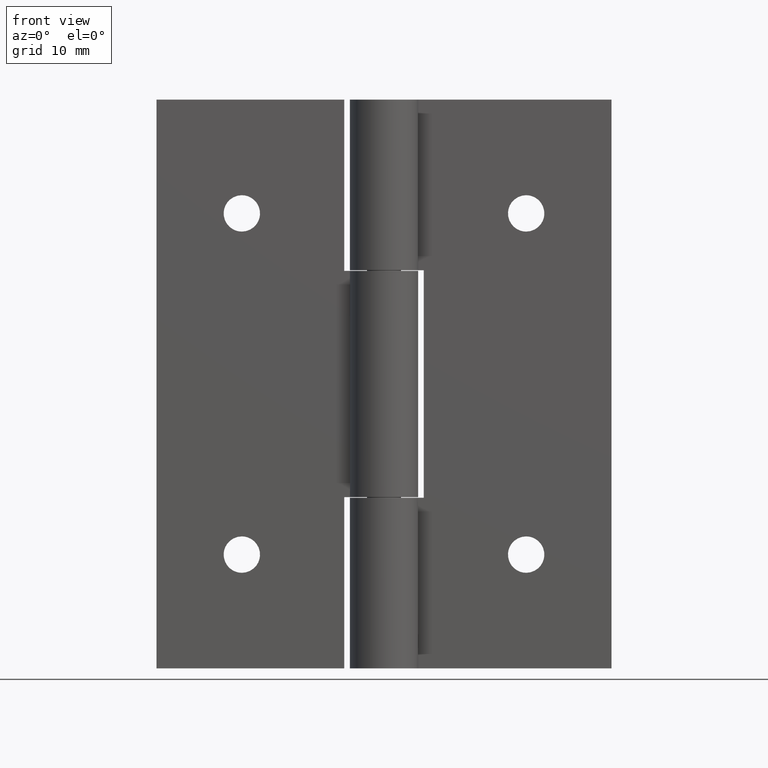
[diagram: clean part render]
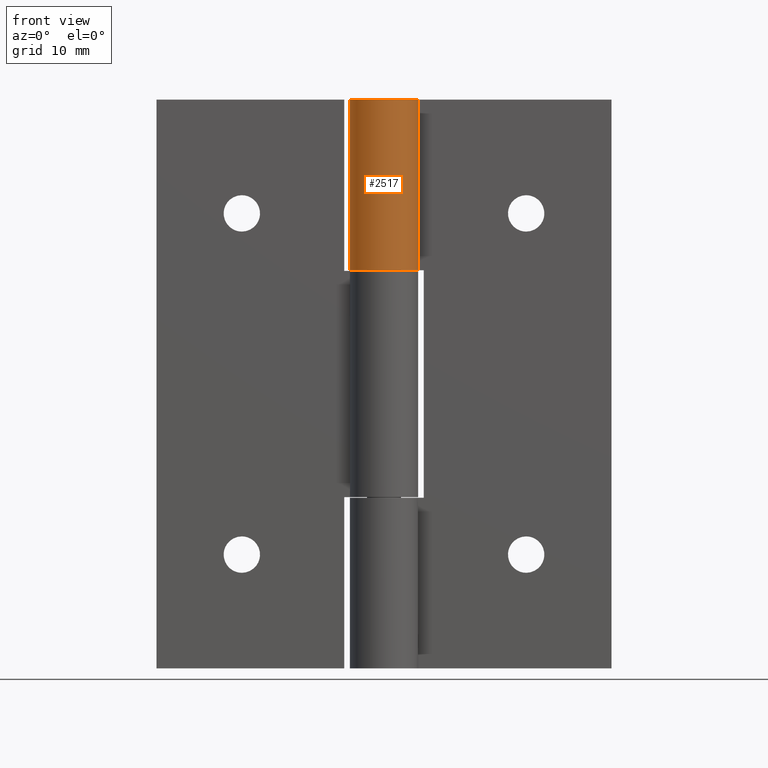
[diagram: same view with one face highlighted and labeled with its STEP entity id]
A machine part, front view. The second image highlights one B-rep face of the part: STEP entity #2517.
In plain terms, the highlighted face is a freeform B-spline surface patch.
Its self-contained STEP definition (entity closure, byte-faithful):
#2437=CARTESIAN_POINT('',(0.106477102102893,2.998109842338630,50.375000000000007));
#2438=CARTESIAN_POINT('',(0.106477102102893,2.998109842338630,34.615624999999987));
#2439=CARTESIAN_POINT('',(-3.302198186550077,3.119168070966572,50.375000000000021));
#2440=CARTESIAN_POINT('',(-3.302198186550077,3.119168070966572,34.615625000000001));
#2441=CARTESIAN_POINT('',(-2.987177270559451,-0.277077523904384,50.375000000000007));
#2442=CARTESIAN_POINT('',(-2.987177270559451,-0.277077523904384,34.615624999999987));
#2443=CARTESIAN_POINT('',(-2.672156354568825,-3.673323118775340,50.375000000000021));
#2444=CARTESIAN_POINT('',(-2.672156354568825,-3.673323118775340,34.615625000000001));
#2445=CARTESIAN_POINT('',(0.656099356428951,-2.927376578866052,50.375000000000007));
#2446=CARTESIAN_POINT('',(0.656099356428951,-2.927376578866052,34.615624999999987));
#2447=CARTESIAN_POINT('',(3.984355067426725,-2.181430038956764,50.375000000000021));
#2448=CARTESIAN_POINT('',(3.984355067426725,-2.181430038956764,34.615625000000001));
#2449=CARTESIAN_POINT('',(2.819686064529717,1.024387864774330,50.375000000000007));
#2450=CARTESIAN_POINT('',(2.819686064529717,1.024387864774330,34.615624999999987));
#2458=(BOUNDED_SURFACE()B_SPLINE_SURFACE(1,2,((#2437,#2439,#2441,#2443,#2445,#2447,#2449),(#2438,#2440,#2442,#2444,#2446,#2448,#2450)),.UNSPECIFIED.,.F.,.F.,.U.)B_SPLINE_SURFACE_WITH_KNOTS((2,2),(3,2,2,3),(0.0,15.759375000000020),(0.0,5.426614549640453,10.853229099280910,16.279843648921361),.UNSPECIFIED.)GEOMETRIC_REPRESENTATION_ITEM()RATIONAL_B_SPLINE_SURFACE(((1.0,0.660438623999008,1.0,0.660438623999008,1.0,0.660438623999008,1.0),(1.0,0.660438623999008,1.0,0.660438623999008,1.0,0.660438623999008,1.0)))REPRESENTATION_ITEM('')SURFACE());
#2459=CARTESIAN_POINT('',(-5.510729E-016,3.0,50.0));
#2460=VERTEX_POINT('',#2459);
#2461=CARTESIAN_POINT('',(0.0,3.0,35.0));
#2462=VERTEX_POINT('',#2461);
#2463=CARTESIAN_POINT('',(-5.510729E-016,3.0,50.0));
#2464=CARTESIAN_POINT('',(0.0,3.0,35.0));
#2465=QUASI_UNIFORM_CURVE('',1,(#2463,#2464),.UNSPECIFIED.,.F.,.U.);
#2466=EDGE_CURVE('',#2460,#2462,#2465,.T.);
#2467=ORIENTED_EDGE('',*,*,#2466,.T.);
#2468=CARTESIAN_POINT('',(2.891366458960195,0.799999999999990,35.0));
#2469=VERTEX_POINT('',#2468);
#2470=CARTESIAN_POINT('',(2.891366458960195,0.799999999999991,35.0));
#2471=CARTESIAN_POINT('',(3.465870241890749,-1.276376210638973,35.000000000000007));
#2472=CARTESIAN_POINT('',(1.681895628722578,-2.484195462133341,35.0));
#2473=CARTESIAN_POINT('',(-0.102078984445593,-3.692014713627709,35.000000000000007));
#2474=CARTESIAN_POINT('',(-1.816590212458499,-2.387467277262662,35.0));
#2475=CARTESIAN_POINT('',(-3.531101440471402,-1.082919840897615,35.000000000000007));
#2476=CARTESIAN_POINT('',(-2.842745313230505,0.958540079551190,35.0));
#2477=CARTESIAN_POINT('',(-2.154389185989606,3.000000000000000,35.000000000000007));
#2478=CARTESIAN_POINT('',(0.0,3.0,35.0));
#2486=(BOUNDED_CURVE()B_SPLINE_CURVE(2,(#2470,#2471,#2472,#2473,#2474,#2475,#2476,#2477,#2478),.UNSPECIFIED.,.F.,.U.)B_SPLINE_CURVE_WITH_KNOTS((3,2,2,2,3),(0.0,0.250000000000000,0.500000000000000,0.750000000000000,1.0),.UNSPECIFIED.)CURVE()GEOMETRIC_REPRESENTATION_ITEM()RATIONAL_B_SPLINE_CURVE((1.0,0.812254073504836,1.0,0.812254073504836,1.0,0.812254073504836,1.0,0.812254073504836,1.0))REPRESENTATION_ITEM(''));
#2487=EDGE_CURVE('',#2469,#2462,#2486,.T.);
#2488=ORIENTED_EDGE('',*,*,#2487,.F.);
#2489=CARTESIAN_POINT('',(2.891366458960195,0.799999999999990,50.0));
#2490=VERTEX_POINT('',#2489);
#2491=CARTESIAN_POINT('',(2.891366458960195,0.799999999999990,50.0));
#2492=CARTESIAN_POINT('',(2.891366458960195,0.799999999999990,35.0));
#2493=QUASI_UNIFORM_CURVE('',1,(#2491,#2492),.UNSPECIFIED.,.F.,.U.);
#2494=EDGE_CURVE('',#2490,#2469,#2493,.T.);
#2495=ORIENTED_EDGE('',*,*,#2494,.F.);
#2496=CARTESIAN_POINT('',(2.891366458960195,0.799999999999991,50.0));
#2497=CARTESIAN_POINT('',(3.465870241890749,-1.276376210638973,50.000000000000007));
#2498=CARTESIAN_POINT('',(1.681895628722578,-2.484195462133341,50.0));
#2499=CARTESIAN_POINT('',(-0.102078984445593,-3.692014713627709,50.000000000000007));
#2500=CARTESIAN_POINT('',(-1.816590212458499,-2.387467277262662,50.0));
#2501=CARTESIAN_POINT('',(-3.531101440471402,-1.082919840897615,50.000000000000007));
#2502=CARTESIAN_POINT('',(-2.842745313230505,0.958540079551190,50.0));
#2503=CARTESIAN_POINT('',(-2.154389185989606,3.000000000000000,50.000000000000007));
#2504=CARTESIAN_POINT('',(0.0,3.0,50.0));
#2512=(BOUNDED_CURVE()B_SPLINE_CURVE(2,(#2496,#2497,#2498,#2499,#2500,#2501,#2502,#2503,#2504),.UNSPECIFIED.,.F.,.U.)B_SPLINE_CURVE_WITH_KNOTS((3,2,2,2,3),(0.0,0.250000000000000,0.500000000000000,0.750000000000000,1.0),.UNSPECIFIED.)CURVE()GEOMETRIC_REPRESENTATION_ITEM()RATIONAL_B_SPLINE_CURVE((1.0,0.812254073504836,1.0,0.812254073504836,1.0,0.812254073504836,1.0,0.812254073504836,1.0))REPRESENTATION_ITEM(''));
#2513=EDGE_CURVE('',#2490,#2460,#2512,.T.);
#2514=ORIENTED_EDGE('',*,*,#2513,.T.);
#2515=EDGE_LOOP('',(#2467,#2488,#2495,#2514));
#2516=FACE_OUTER_BOUND('',#2515,.T.);
#2517=ADVANCED_FACE('',(#2516),#2458,.T.);